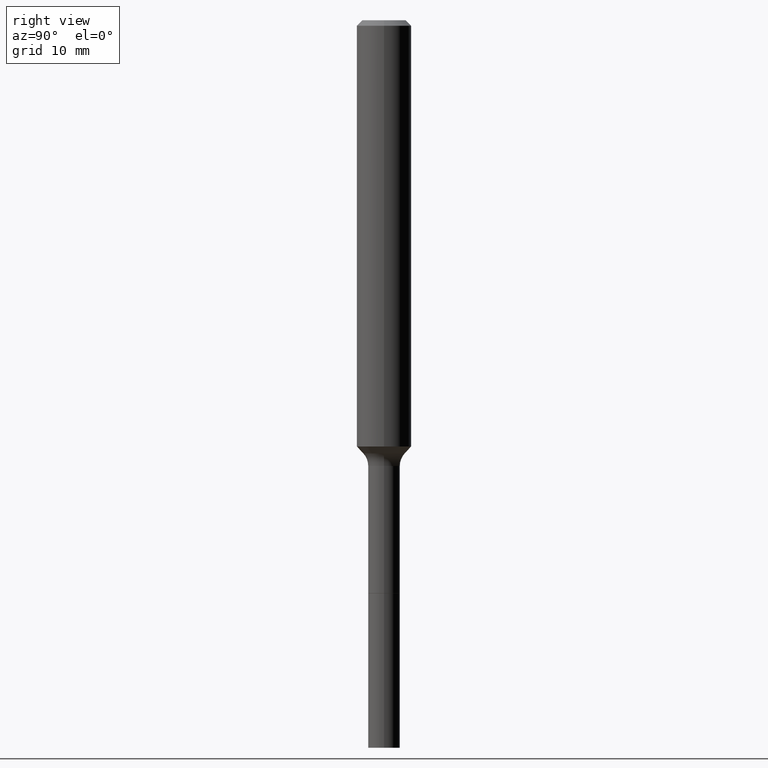
[diagram: clean part render]
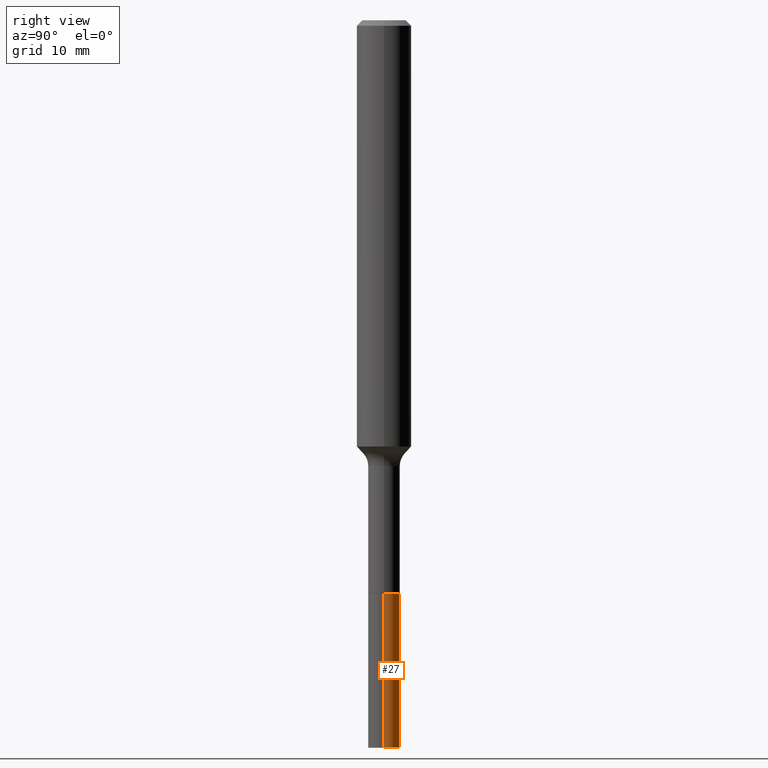
[diagram: same view with one face highlighted and labeled with its STEP entity id]
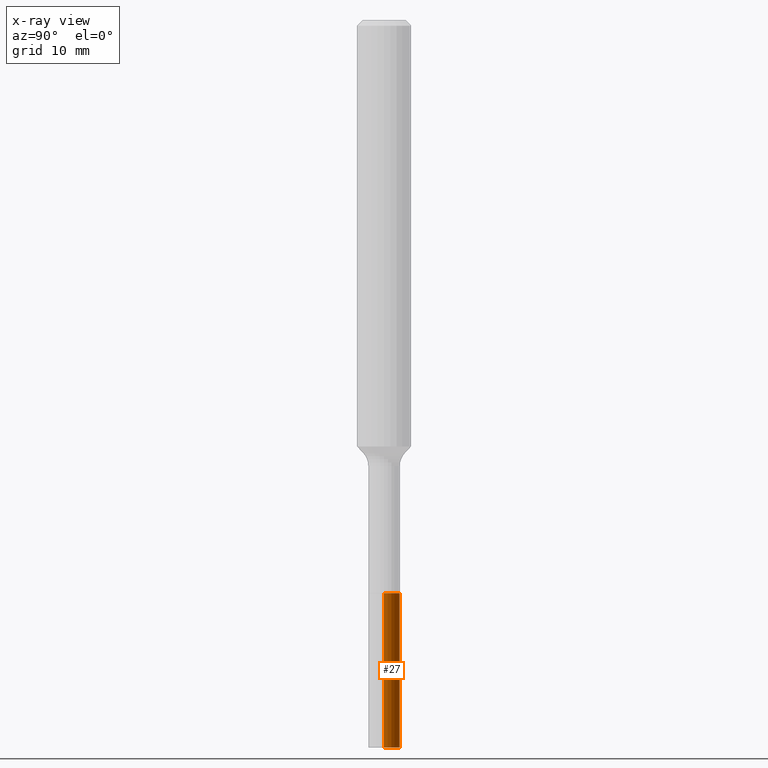
[diagram: x-ray of the same camera — body ghosted, the highlighted face saturated]
A machine part, right view. The second image highlights one B-rep face of the part: STEP entity #27.
The next image is the same camera in x-ray: the body ghosted, the highlighted face saturated — about 0% of this face is hidden behind the body in this view.
In plain terms, the highlighted cylindrical surface (edge-blend (fillet) strip) has radius 1.7501 mm, axis along (-0, 0, 1).
Its self-contained STEP definition (entity closure, byte-faithful):
#10 = DIRECTION ( 'NONE',  ( 1.000000000000000000, -6.982962677686280121E-15, 0.000000000000000000 ) ) ;
#11 = ORIENTED_EDGE ( 'NONE', *, *, #195, .F. ) ;
#19 = CARTESIAN_POINT ( 'NONE',  ( 6.066229920622851108E-29, -8.660968609134307449E-15, -2.480600000000000360 ) ) ;
#27 = ADVANCED_FACE ( 'NONE', ( #379 ), #497, .T. ) ;
#43 = VERTEX_POINT ( 'NONE', #53 ) ;
#53 = CARTESIAN_POINT ( 'NONE',  ( -0.06890000000000021108, -9.339305172038629548E-15, -3.149600000000000399 ) ) ;
#54 = VECTOR ( 'NONE', #233, 39.37007874015748143 ) ;
#59 = EDGE_CURVE ( 'NONE', #484, #90, #443, .T. ) ;
#78 = VERTEX_POINT ( 'NONE', #143 ) ;
#90 = VERTEX_POINT ( 'NONE', #187 ) ;
#98 = LINE ( 'NONE', #130, #489 ) ;
#109 = AXIS2_PLACEMENT_3D ( 'NONE', #482, #263, #179 ) ;
#130 = CARTESIAN_POINT ( 'NONE',  ( -0.06890000000000010005, -8.171404664195598696E-15, -2.480600000000000360 ) ) ;
#132 = LINE ( 'NONE', #366, #54 ) ;
#143 = CARTESIAN_POINT ( 'NONE',  ( 0.06890000000000019720, -1.147789575331295763E-14, -3.149600000000000399 ) ) ;
#149 = AXIS2_PLACEMENT_3D ( 'NONE', #19, #341, #10 ) ;
#179 = DIRECTION ( 'NONE',  ( 1.000000000000000000, -6.982962677686260400E-15, 0.000000000000000000 ) ) ;
#187 = CARTESIAN_POINT ( 'NONE',  ( -0.06890000000000000291, -9.339305172038631126E-15, -2.480600000000000360 ) ) ;
#195 = EDGE_CURVE ( 'NONE', #78, #484, #132, .T. ) ;
#233 = DIRECTION ( 'NONE',  ( -2.445468806185136877E-29, 3.491481338843145188E-15, 1.000000000000000000 ) ) ;
#263 = DIRECTION ( 'NONE',  ( -2.445468806185136597E-29, 3.491481338843145583E-15, 1.000000000000000000 ) ) ;
#266 = ORIENTED_EDGE ( 'NONE', *, *, #362, .T. ) ;
#296 = CARTESIAN_POINT ( 'NONE',  ( 6.066229920622851108E-29, -8.660968609134307449E-15, -2.480600000000000360 ) ) ;
#324 = ORIENTED_EDGE ( 'NONE', *, *, #370, .T. ) ;
#331 = DIRECTION ( 'NONE',  ( 1.000000000000000000, -6.982962677686270655E-15, 0.000000000000000000 ) ) ;
#341 = DIRECTION ( 'NONE',  ( -2.445468806185136597E-29, 3.491481338843145583E-15, 1.000000000000000000 ) ) ;
#353 = CARTESIAN_POINT ( 'NONE',  ( 0.06890000000000000291, -9.142094737626892765E-15, -2.480600000000000360 ) ) ;
#362 = EDGE_CURVE ( 'NONE', #43, #90, #98, .T. ) ;
#366 = CARTESIAN_POINT ( 'NONE',  ( 0.06890000000000010005, -9.142094737626892765E-15, -2.480600000000000360 ) ) ;
#370 = EDGE_CURVE ( 'NONE', #78, #43, #424, .T. ) ;
#371 = DIRECTION ( 'NONE',  ( -2.445468806185136877E-29, 3.491481338843145188E-15, 1.000000000000000000 ) ) ;
#379 = FACE_OUTER_BOUND ( 'NONE', #399, .T. ) ;
#399 = EDGE_LOOP ( 'NONE', ( #324, #266, #429, #11 ) ) ;
#418 = DIRECTION ( 'NONE',  ( -2.445468806185136597E-29, 3.491481338843145583E-15, 1.000000000000000000 ) ) ;
#424 = CIRCLE ( 'NONE', #109, 0.06890000000000019720 ) ;
#429 = ORIENTED_EDGE ( 'NONE', *, *, #59, .F. ) ;
#443 = CIRCLE ( 'NONE', #149, 0.06890000000000000291 ) ;
#482 = CARTESIAN_POINT ( 'NONE',  ( 7.702248551960706711E-29, -1.099676962482037231E-14, -3.149600000000000399 ) ) ;
#484 = VERTEX_POINT ( 'NONE', #353 ) ;
#488 = AXIS2_PLACEMENT_3D ( 'NONE', #296, #418, #331 ) ;
#489 = VECTOR ( 'NONE', #371, 39.37007874015748143 ) ;
#497 = CYLINDRICAL_SURFACE ( 'NONE', #488, 0.06890000000000010005 ) ;